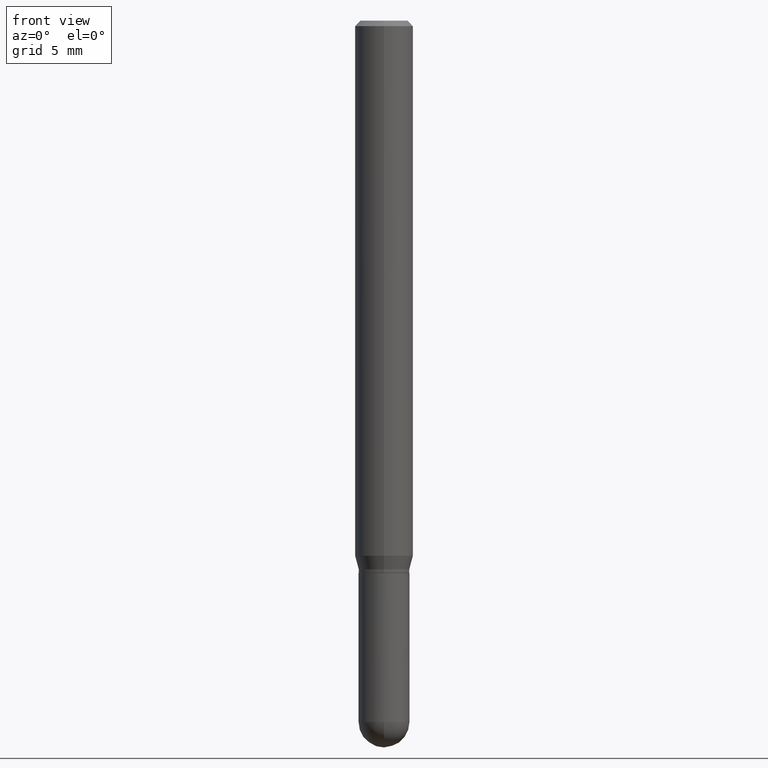
[diagram: clean part render]
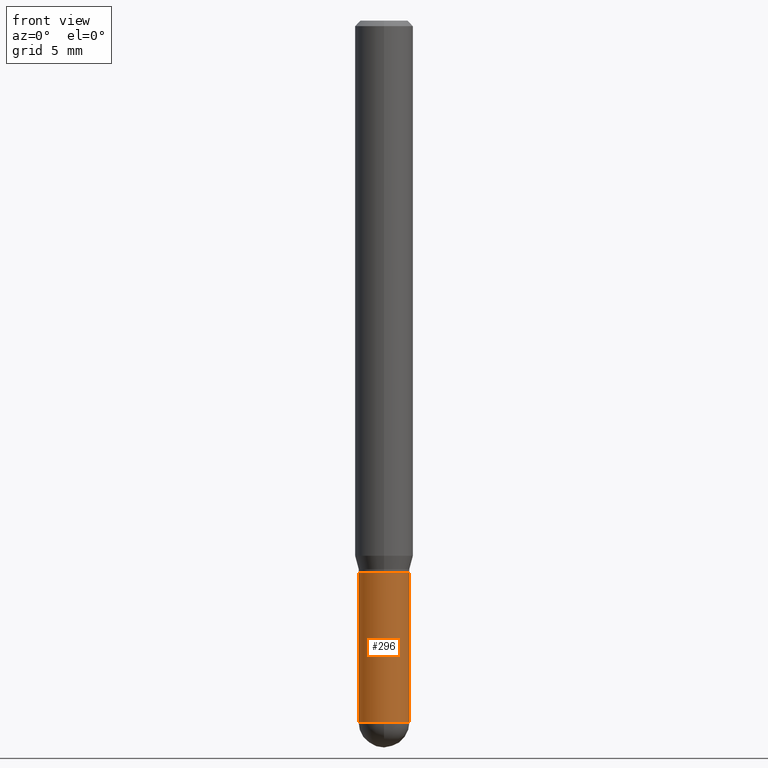
[diagram: same view with one face highlighted and labeled with its STEP entity id]
A machine part, front view. The second image highlights one B-rep face of the part: STEP entity #296.
In plain terms, the highlighted cylindrical surface (edge-blend (fillet) strip) has radius 1.7501 mm, axis along (-0, 0, 1).
Its self-contained STEP definition (entity closure, byte-faithful):
#14 = VECTOR ( 'NONE', #312, 39.37007874015748143 ) ;
#19 = FACE_OUTER_BOUND ( 'NONE', #469, .T. ) ;
#20 = VECTOR ( 'NONE', #486, 39.37007874015748143 ) ;
#21 = AXIS2_PLACEMENT_3D ( 'NONE', #254, #387, #103 ) ;
#30 = VERTEX_POINT ( 'NONE', #32 ) ;
#32 = CARTESIAN_POINT ( 'NONE',  ( 0.06890000000000008618, -6.409137719647418882E-15, -1.899600000000000177 ) ) ;
#37 = VERTEX_POINT ( 'NONE', #353 ) ;
#43 = DIRECTION ( 'NONE',  ( -2.445468806185136597E-29, 3.491481338843145583E-15, 1.000000000000000000 ) ) ;
#46 = AXIS2_PLACEMENT_3D ( 'NONE', #444, #43, #196 ) ;
#53 = AXIS2_PLACEMENT_3D ( 'NONE', #272, #310, #276 ) ;
#55 = LINE ( 'NONE', #148, #14 ) ;
#86 = EDGE_CURVE ( 'NONE', #229, #327, #317, .T. ) ;
#90 = ORIENTED_EDGE ( 'NONE', *, *, #86, .F. ) ;
#92 = CARTESIAN_POINT ( 'NONE',  ( -0.06890000000000008618, -5.438447646216124813E-15, -1.899600000000000177 ) ) ;
#103 = DIRECTION ( 'NONE',  ( 1.000000000000000000, -6.982962677686273021E-15, 0.000000000000000000 ) ) ;
#112 = ORIENTED_EDGE ( 'NONE', *, *, #189, .T. ) ;
#122 = VERTEX_POINT ( 'NONE', #395 ) ;
#139 = DIRECTION ( 'NONE',  ( -2.445468806185136597E-29, 3.491481338843145583E-15, 1.000000000000000000 ) ) ;
#142 = DIRECTION ( 'NONE',  ( 1.000000000000000000, -6.982962677686265922E-15, 4.876176775795935232E-29 ) ) ;
#148 = CARTESIAN_POINT ( 'NONE',  ( 0.06890000000000007230, -4.811261284925842315E-16, 3.359685798523402771E-30 ) ) ;
#171 = CIRCLE ( 'NONE', #21, 0.06890000000000007230 ) ;
#189 = EDGE_CURVE ( 'NONE', #30, #122, #55, .T. ) ;
#196 = DIRECTION ( 'NONE',  ( 1.000000000000000000, -6.982962677686273021E-15, 0.000000000000000000 ) ) ;
#206 = AXIS2_PLACEMENT_3D ( 'NONE', #493, #139, #142 ) ;
#226 = CARTESIAN_POINT ( 'NONE',  ( -0.06890000000000007230, 4.895639449387095418E-16, -3.389146277185633520E-30 ) ) ;
#229 = VERTEX_POINT ( 'NONE', #92 ) ;
#254 = CARTESIAN_POINT ( 'NONE',  ( 4.645412544229285965E-29, -6.632417951266439838E-15, -1.899600000000000177 ) ) ;
#272 = CARTESIAN_POINT ( 'NONE',  ( 4.645412544229285965E-29, -6.632417951266439838E-15, -1.899600000000000177 ) ) ;
#276 = DIRECTION ( 'NONE',  ( 1.000000000000000000, -6.982962677686273021E-15, 0.000000000000000000 ) ) ;
#288 = CIRCLE ( 'NONE', #53, 0.06890000000000007230 ) ;
#296 = ADVANCED_FACE ( 'NONE', ( #19 ), #345, .T. ) ;
#299 = EDGE_CURVE ( 'NONE', #37, #30, #288, .T. ) ;
#310 = DIRECTION ( 'NONE',  ( -2.445468806185136597E-29, 3.491481338843145583E-15, 1.000000000000000000 ) ) ;
#312 = DIRECTION ( 'NONE',  ( -2.445468806185136877E-29, 3.491481338843145188E-15, 1.000000000000000000 ) ) ;
#317 = LINE ( 'NONE', #226, #20 ) ;
#327 = VERTEX_POINT ( 'NONE', #348 ) ;
#345 = CYLINDRICAL_SURFACE ( 'NONE', #206, 0.06890000000000007230 ) ;
#348 = CARTESIAN_POINT ( 'NONE',  ( -0.06890000000000007230, -5.438447646216124813E-15, -1.496099999999999985 ) ) ;
#353 = CARTESIAN_POINT ( 'NONE',  ( -4.895639449386624073E-16, -0.06890000000000662261, -1.899599999999999955 ) ) ;
#357 = ORIENTED_EDGE ( 'NONE', *, *, #466, .F. ) ;
#387 = DIRECTION ( 'NONE',  ( -2.445468806185136597E-29, 3.491481338843145583E-15, 1.000000000000000000 ) ) ;
#395 = CARTESIAN_POINT ( 'NONE',  ( 0.06890000000000007230, -5.704731359535814187E-15, -1.496099999999999985 ) ) ;
#409 = EDGE_CURVE ( 'NONE', #229, #37, #171, .T. ) ;
#434 = ORIENTED_EDGE ( 'NONE', *, *, #299, .T. ) ;
#444 = CARTESIAN_POINT ( 'NONE',  ( 3.658665880933582389E-29, -5.223605231043229660E-15, -1.496099999999999985 ) ) ;
#461 = CIRCLE ( 'NONE', #46, 0.06890000000000007230 ) ;
#466 = EDGE_CURVE ( 'NONE', #327, #122, #461, .T. ) ;
#469 = EDGE_LOOP ( 'NONE', ( #90, #506, #434, #112, #357 ) ) ;
#486 = DIRECTION ( 'NONE',  ( -2.445468806185136877E-29, 3.491481338843145188E-15, 1.000000000000000000 ) ) ;
#493 = CARTESIAN_POINT ( 'NONE',  ( 0.000000000000000000, 0.000000000000000000, 0.000000000000000000 ) ) ;
#506 = ORIENTED_EDGE ( 'NONE', *, *, #409, .T. ) ;